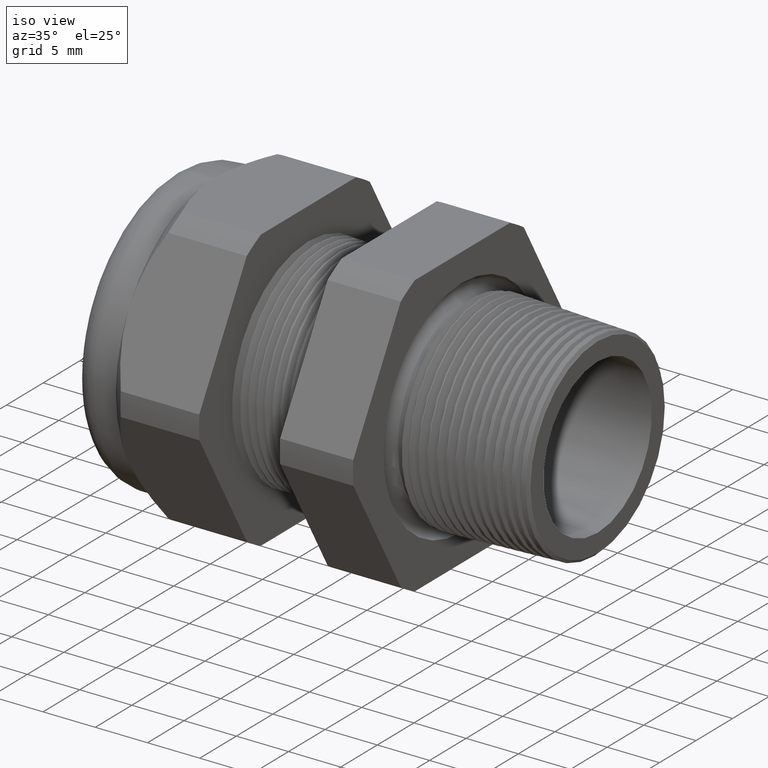
[diagram: clean part render]
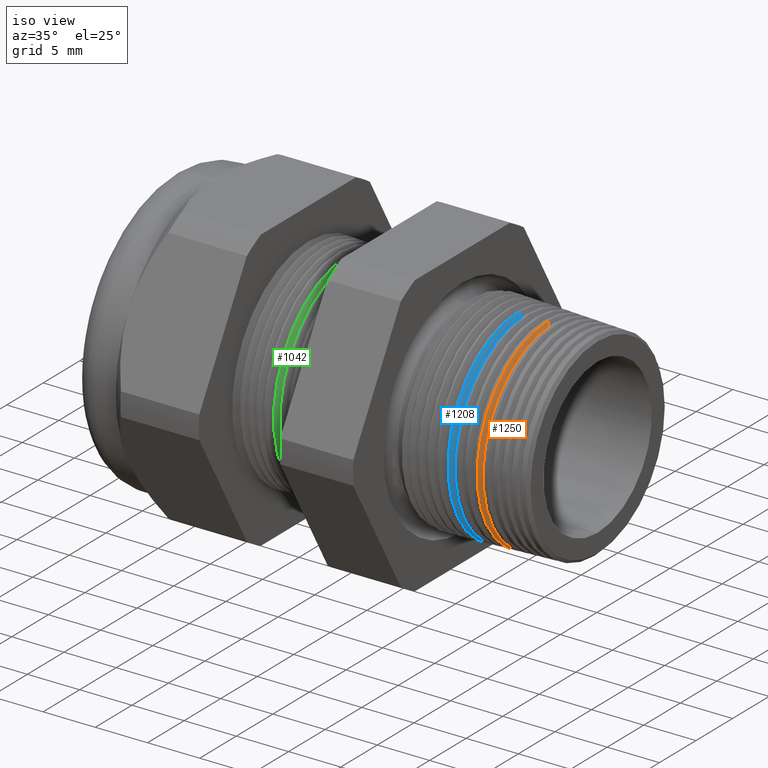
[diagram: same view with three faces highlighted in distinct colors, each labeled with its STEP entity id]
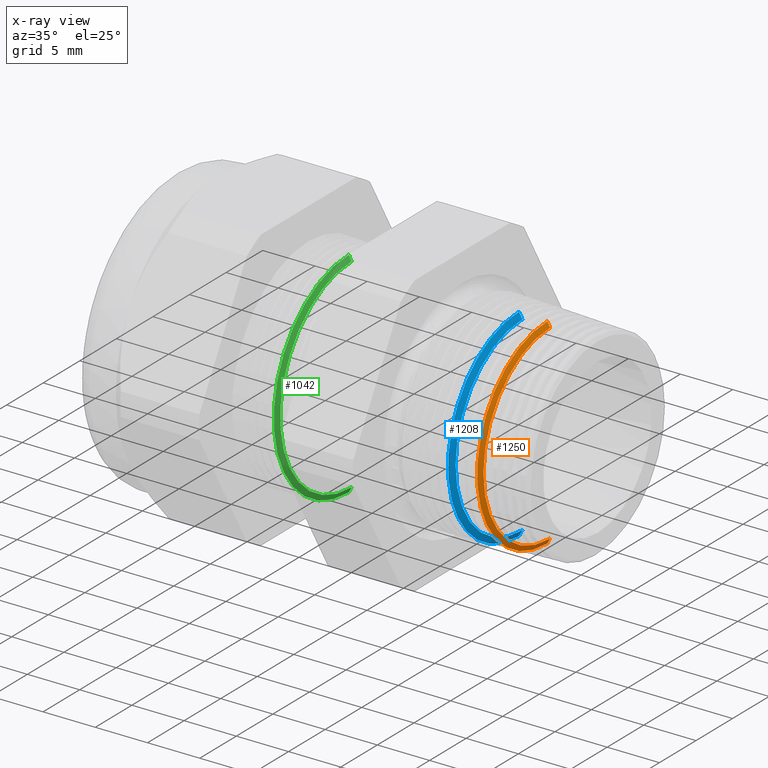
[diagram: x-ray of the same camera — body ghosted, the three highlighted faces saturated]
A machine part, iso view with three faces highlighted in distinct colors.
The next image is the same camera in x-ray (body ghosted, the three faces saturated) — at least one of them is partly hidden behind the body in this view.
Their STEP definitions:

[orange] entity #1250 — the highlighted conical surface has half-angle 62 deg.
#403 = EDGE_CURVE ( 'NONE', #1730, #1676, #2629, .T. ) ;
#1228 = ORIENTED_EDGE ( 'NONE', *, *, #1229, .F. ) ;
#1229 = EDGE_CURVE ( 'NONE', #1691, #1690, #4067, .T. ) ;
#1230 = ORIENTED_EDGE ( 'NONE', *, *, #1715, .T. ) ;
#1231 = ORIENTED_EDGE ( 'NONE', *, *, #403, .T. ) ;
#1250 = ADVANCED_FACE ( 'NONE', ( #4043 ), #4099, .T. ) ;
#1251 = EDGE_LOOP ( 'NONE', ( #1252, #1228, #1230, #1231 ) ) ;
#1252 = ORIENTED_EDGE ( 'NONE', *, *, #1682, .F. ) ;
#1676 = VERTEX_POINT ( 'NONE', #4928 ) ;
#1682 = EDGE_CURVE ( 'NONE', #1690, #1676, #4915, .T. ) ;
#1690 = VERTEX_POINT ( 'NONE', #4955 ) ;
#1691 = VERTEX_POINT ( 'NONE', #4954 ) ;
#1715 = EDGE_CURVE ( 'NONE', #1691, #1730, #4974, .T. ) ;
#1730 = VERTEX_POINT ( 'NONE', #5012 ) ;
#2626 = DIRECTION ( 'NONE',  ( 0.0000000000000000000, 0.0000000000000000000, 1.000000000000000000 ) ) ;
#2627 = DIRECTION ( 'NONE',  ( 1.000000000000000000, 0.0000000000000000000, 0.0000000000000000000 ) ) ;
#2628 = AXIS2_PLACEMENT_3D ( 'NONE', #2635, #2627, #2626 ) ;
#2629 = CIRCLE ( 'NONE', #2628, 0.3785268030050164500 ) ;
#2635 = CARTESIAN_POINT ( 'NONE',  ( 0.01095948014170899200, 0.0000000000000000000, 0.0000000000000000000 ) ) ;
#4043 = FACE_OUTER_BOUND ( 'NONE', #1251, .T. ) ;
#4063 = DIRECTION ( 'NONE',  ( 0.0000000000000000000, 0.0000000000000000000, -1.000000000000000000 ) ) ;
#4064 = DIRECTION ( 'NONE',  ( 1.000000000000000000, 0.0000000000000000000, 0.0000000000000000000 ) ) ;
#4065 = CARTESIAN_POINT ( 'NONE',  ( 0.02126297198907897000, 0.0000000000000000000, 0.0000000000000000000 ) ) ;
#4066 = AXIS2_PLACEMENT_3D ( 'NONE', #4065, #4064, #4063 ) ;
#4067 = CIRCLE ( 'NONE', #4066, 0.3591487532021881400 ) ;
#4094 = DIRECTION ( 'NONE',  ( 0.0000000000000000000, 0.0000000000000000000, 1.000000000000000000 ) ) ;
#4095 = DIRECTION ( 'NONE',  ( -1.000000000000000000, 0.0000000000000000000, 0.0000000000000000000 ) ) ;
#4096 = CARTESIAN_POINT ( 'NONE',  ( 0.005000000000000083400, 0.0000000000000000000, 0.0000000000000000000 ) ) ;
#4097 = AXIS2_PLACEMENT_3D ( 'NONE', #4096, #4095, #4094 ) ;
#4099 = CONICAL_SURFACE ( 'NONE', #4097, 0.3897349550272340400, 1.082104136236472300 ) ;
#4912 = DIRECTION ( 'NONE',  ( -0.4694715627859013500, 1.081298943409538200E-016, -0.8829475928589212200 ) ) ;
#4913 = VECTOR ( 'NONE', #4912, 39.37007874015748900 ) ;
#4914 = CARTESIAN_POINT ( 'NONE',  ( 0.005000000000000083400, 4.772876651899397700E-017, -0.3897349550272340400 ) ) ;
#4915 = LINE ( 'NONE', #4914, #4913 ) ;
#4928 = CARTESIAN_POINT ( 'NONE',  ( 0.01095948014170899200, 4.638250513450903700E-017, -0.3785268030050164500 ) ) ;
#4954 = CARTESIAN_POINT ( 'NONE',  ( 0.02126297198907897000, 0.0000000000000000000, 0.3591487532021881400 ) ) ;
#4955 = CARTESIAN_POINT ( 'NONE',  ( 0.02126297198907897000, 4.516960043591983400E-017, -0.3591487532021881400 ) ) ;
#4971 = DIRECTION ( 'NONE',  ( -0.4694715627859013500, 0.0000000000000000000, 0.8829475928589212200 ) ) ;
#4972 = VECTOR ( 'NONE', #4971, 39.37007874015748900 ) ;
#4973 = CARTESIAN_POINT ( 'NONE',  ( 0.005000000000000083400, 0.0000000000000000000, 0.3897349550272340400 ) ) ;
#4974 = LINE ( 'NONE', #4973, #4972 ) ;
#5012 = CARTESIAN_POINT ( 'NONE',  ( 0.01095948014170899200, 0.0000000000000000000, 0.3785268030050164500 ) ) ;

[blue] entity #1208 — the highlighted conical surface has half-angle 62 deg.
#455 = EDGE_CURVE ( 'NONE', #1768, #1773, #2773, .T. ) ;
#1190 = ORIENTED_EDGE ( 'NONE', *, *, #1812, .T. ) ;
#1191 = ORIENTED_EDGE ( 'NONE', *, *, #455, .T. ) ;
#1208 = ADVANCED_FACE ( 'NONE', ( #4031 ), #4030, .T. ) ;
#1209 = EDGE_LOOP ( 'NONE', ( #1210, #1211, #1190, #1191 ) ) ;
#1210 = ORIENTED_EDGE ( 'NONE', *, *, #1769, .F. ) ;
#1211 = ORIENTED_EDGE ( 'NONE', *, *, #1212, .F. ) ;
#1212 = EDGE_CURVE ( 'NONE', #1695, #1697, #4025, .T. ) ;
#1695 = VERTEX_POINT ( 'NONE', #4948 ) ;
#1697 = VERTEX_POINT ( 'NONE', #4942 ) ;
#1768 = VERTEX_POINT ( 'NONE', #5063 ) ;
#1769 = EDGE_CURVE ( 'NONE', #1697, #1773, #5062, .T. ) ;
#1773 = VERTEX_POINT ( 'NONE', #5118 ) ;
#1812 = EDGE_CURVE ( 'NONE', #1695, #1768, #5172, .T. ) ;
#2770 = DIRECTION ( 'NONE',  ( 0.0000000000000000000, 0.0000000000000000000, 1.000000000000000000 ) ) ;
#2771 = DIRECTION ( 'NONE',  ( 1.000000000000000000, 0.0000000000000000000, 0.0000000000000000000 ) ) ;
#2772 = AXIS2_PLACEMENT_3D ( 'NONE', #2778, #2771, #2770 ) ;
#2773 = CIRCLE ( 'NONE', #2772, 0.3822628536790890200 ) ;
#2778 = CARTESIAN_POINT ( 'NONE',  ( -0.09602701323886070300, 0.0000000000000000000, 0.0000000000000000000 ) ) ;
#4022 = DIRECTION ( 'NONE',  ( 0.0000000000000000000, 0.0000000000000000000, -1.000000000000000000 ) ) ;
#4023 = DIRECTION ( 'NONE',  ( 1.000000000000000000, 0.0000000000000000000, 0.0000000000000000000 ) ) ;
#4024 = AXIS2_PLACEMENT_3D ( 'NONE', #4029, #4023, #4022 ) ;
#4025 = CIRCLE ( 'NONE', #4024, 0.3591487532021881400 ) ;
#4026 = DIRECTION ( 'NONE',  ( 0.0000000000000000000, 0.0000000000000000000, 1.000000000000000000 ) ) ;
#4027 = DIRECTION ( 'NONE',  ( -1.000000000000000000, 0.0000000000000000000, 0.0000000000000000000 ) ) ;
#4028 = AXIS2_PLACEMENT_3D ( 'NONE', #4035, #4027, #4026 ) ;
#4029 = CARTESIAN_POINT ( 'NONE',  ( -0.08373702801092107500, 0.0000000000000000000, 0.0000000000000000000 ) ) ;
#4030 = CONICAL_SURFACE ( 'NONE', #4028, 0.3897349550272340400, 1.082104136236472300 ) ;
#4031 = FACE_OUTER_BOUND ( 'NONE', #1209, .T. ) ;
#4035 = CARTESIAN_POINT ( 'NONE',  ( -0.09999999999999996400, 0.0000000000000000000, 0.0000000000000000000 ) ) ;
#4942 = CARTESIAN_POINT ( 'NONE',  ( -0.08373702801092107500, 4.539836756089259800E-017, -0.3591487532021881400 ) ) ;
#4948 = CARTESIAN_POINT ( 'NONE',  ( -0.08373702801092107500, 0.0000000000000000000, 0.3591487532021881400 ) ) ;
#5060 = VECTOR ( 'NONE', #5119, 39.37007874015748900 ) ;
#5061 = CARTESIAN_POINT ( 'NONE',  ( -0.09999999999999996400, 4.772876651899397700E-017, -0.3897349550272340400 ) ) ;
#5062 = LINE ( 'NONE', #5061, #5060 ) ;
#5063 = CARTESIAN_POINT ( 'NONE',  ( -0.09602701323886070300, 0.0000000000000000000, 0.3822628536790890200 ) ) ;
#5118 = CARTESIAN_POINT ( 'NONE',  ( -0.09602701323886070300, 4.683099710653431800E-017, -0.3822628536790890200 ) ) ;
#5119 = DIRECTION ( 'NONE',  ( -0.4694715627859013500, 1.081298943409538200E-016, -0.8829475928589212200 ) ) ;
#5169 = DIRECTION ( 'NONE',  ( -0.4694715627859013500, 0.0000000000000000000, 0.8829475928589212200 ) ) ;
#5170 = VECTOR ( 'NONE', #5169, 39.37007874015748900 ) ;
#5171 = CARTESIAN_POINT ( 'NONE',  ( -0.09999999999999996400, 0.0000000000000000000, 0.3897349550272340400 ) ) ;
#5172 = LINE ( 'NONE', #5171, #5170 ) ;

[green] entity #1042 — the highlighted conical surface has half-angle 62 deg.
#216 = EDGE_CURVE ( 'NONE', #233, #217, #2336, .T. ) ;
#217 = VERTEX_POINT ( 'NONE', #2327 ) ;
#220 = VERTEX_POINT ( 'NONE', #2321 ) ;
#222 = EDGE_CURVE ( 'NONE', #234, #220, #2320, .T. ) ;
#233 = VERTEX_POINT ( 'NONE', #2359 ) ;
#234 = VERTEX_POINT ( 'NONE', #2358 ) ;
#531 = EDGE_CURVE ( 'NONE', #220, #217, #2880, .T. ) ;
#1042 = ADVANCED_FACE ( 'NONE', ( #3790 ), #3789, .T. ) ;
#1043 = EDGE_LOOP ( 'NONE', ( #1044, #1096, #1098, #1099 ) ) ;
#1044 = ORIENTED_EDGE ( 'NONE', *, *, #216, .F. ) ;
#1096 = ORIENTED_EDGE ( 'NONE', *, *, #1097, .F. ) ;
#1097 = EDGE_CURVE ( 'NONE', #234, #233, #3911, .T. ) ;
#1098 = ORIENTED_EDGE ( 'NONE', *, *, #222, .T. ) ;
#1099 = ORIENTED_EDGE ( 'NONE', *, *, #531, .T. ) ;
#2317 = DIRECTION ( 'NONE',  ( -0.4694715627859021900, 0.0000000000000000000, 0.8829475928589208800 ) ) ;
#2318 = VECTOR ( 'NONE', #2317, 39.37007874015748100 ) ;
#2319 = CARTESIAN_POINT ( 'NONE',  ( -0.7403149606299210800, 0.0000000000000000000, 0.4099999999999999800 ) ) ;
#2320 = LINE ( 'NONE', #2319, #2318 ) ;
#2321 = CARTESIAN_POINT ( 'NONE',  ( -0.7374771129433930200, 0.0000000000000000000, 0.4046627847513250600 ) ) ;
#2327 = CARTESIAN_POINT ( 'NONE',  ( -0.7374771129433930200, 4.957090523884741100E-017, -0.4046627847513250600 ) ) ;
#2328 = DIRECTION ( 'NONE',  ( -0.4694715627859021900, 1.081298943409537900E-016, -0.8829475928589208800 ) ) ;
#2329 = VECTOR ( 'NONE', #2328, 39.37007874015748100 ) ;
#2330 = CARTESIAN_POINT ( 'NONE',  ( -0.7403149606299210800, 5.021051876504148100E-017, -0.4099999999999999800 ) ) ;
#2336 = LINE ( 'NONE', #2330, #2329 ) ;
#2358 = CARTESIAN_POINT ( 'NONE',  ( -0.7267624839723553200, 0.0000000000000000000, 0.3845114984791284100 ) ) ;
#2359 = CARTESIAN_POINT ( 'NONE',  ( -0.7267624839723553200, 4.832298799637908300E-017, -0.3845114984791284100 ) ) ;
#2877 = DIRECTION ( 'NONE',  ( 0.0000000000000000000, 0.0000000000000000000, 1.000000000000000000 ) ) ;
#2878 = DIRECTION ( 'NONE',  ( 1.000000000000000000, 0.0000000000000000000, 0.0000000000000000000 ) ) ;
#2879 = AXIS2_PLACEMENT_3D ( 'NONE', #2885, #2878, #2877 ) ;
#2880 = CIRCLE ( 'NONE', #2879, 0.4046627847513250600 ) ;
#2885 = CARTESIAN_POINT ( 'NONE',  ( -0.7374771129433930200, 0.0000000000000000000, 0.0000000000000000000 ) ) ;
#3785 = DIRECTION ( 'NONE',  ( 0.0000000000000000000, 0.0000000000000000000, 1.000000000000000000 ) ) ;
#3786 = DIRECTION ( 'NONE',  ( -1.000000000000000000, 0.0000000000000000000, 0.0000000000000000000 ) ) ;
#3787 = AXIS2_PLACEMENT_3D ( 'NONE', #3794, #3786, #3785 ) ;
#3789 = CONICAL_SURFACE ( 'NONE', #3787, 0.4099999999999999800, 1.082104136236471400 ) ;
#3790 = FACE_OUTER_BOUND ( 'NONE', #1043, .T. ) ;
#3794 = CARTESIAN_POINT ( 'NONE',  ( -0.7403149606299210800, 0.0000000000000000000, 0.0000000000000000000 ) ) ;
#3903 = DIRECTION ( 'NONE',  ( 0.0000000000000000000, 0.0000000000000000000, -1.000000000000000000 ) ) ;
#3904 = DIRECTION ( 'NONE',  ( 1.000000000000000000, 0.0000000000000000000, 0.0000000000000000000 ) ) ;
#3905 = CARTESIAN_POINT ( 'NONE',  ( -0.7267624839723553200, 0.0000000000000000000, 0.0000000000000000000 ) ) ;
#3906 = AXIS2_PLACEMENT_3D ( 'NONE', #3905, #3904, #3903 ) ;
#3911 = CIRCLE ( 'NONE', #3906, 0.3845114984791284100 ) ;